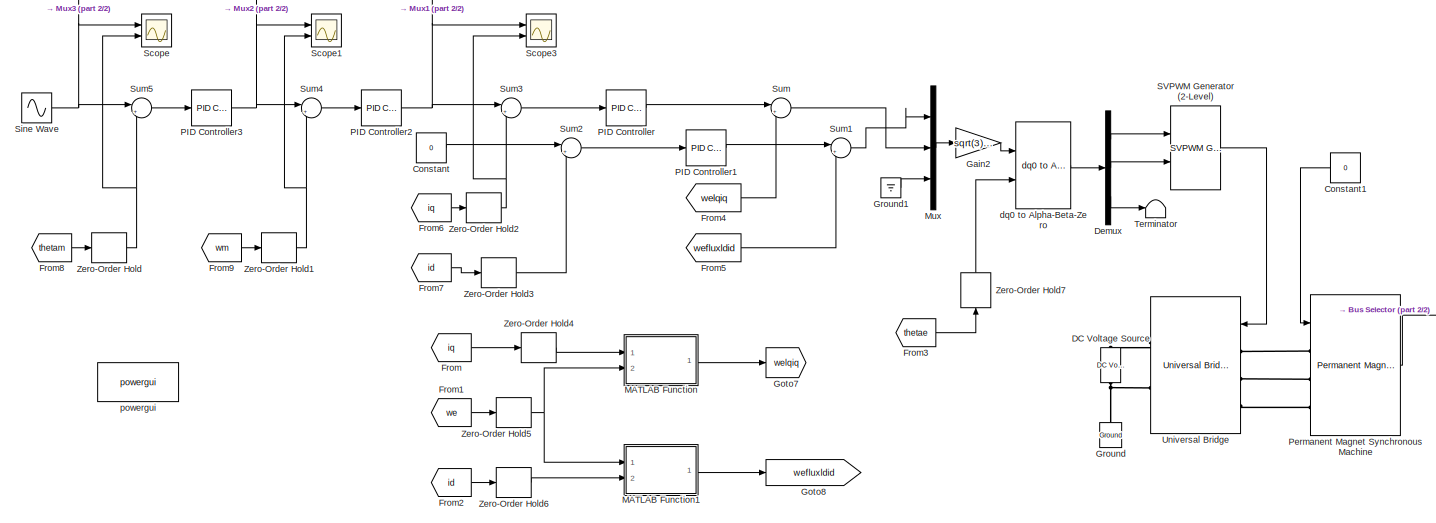
[diagram: root canvas - part 1/2, center side, full height]
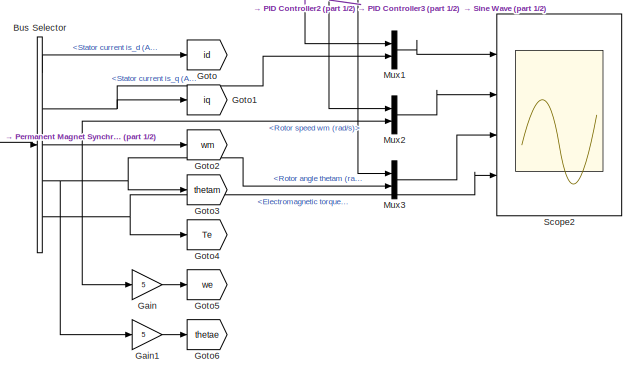
[diagram: root canvas - part 2/2, bottom right region]
MODEL slx_c045261bbdf4
KIND model
CONFIG AbsTol = auto
CONFIG EnableMultiTasking = off
CONFIG FixedStep = Auto
CONFIG InitFcn = ld = 10.1e-3;\nlq = 10.1e-3;\nflux = 0.0707;\ntz = 1/2000;
CONFIG MaxStep = 1e-4
CONFIG MinStep = 1e-5
CONFIG RelTol = 1e-3
CONFIG SampleTimeConstraint = Unconstrained
CONFIG SolverName = VariableStepAuto
CONFIG StartTime = 0.0
CONFIG StopTime = 1
BLOCK [BusSelector] Bus Selector
  OutputSignals = Stator current is_d (A),Stator current is_q (A),Rotor speed wm (rad/s),Rotor angle thetam (rad),Electromagnetic torque Te (N*m)
  Ports = [1, 5]
BLOCK [Constant] Constant
  Value = 0
BLOCK [Constant] Constant1
  NameLocation = top
  Value = 0
BLOCK [Reference] DC Voltage Source  REF=spsDCVoltageSourceLib/DC Voltage Source
  Ports = [0, 0, 0, 0, 0, 1, 1]
  SourceBlock = spsDCVoltageSourceLib/DC Voltage Source
  SourceProductBaseCode = PS
  SourceType = DC Voltage Source
BLOCK [Demux] Demux
  Outputs = 3
  Ports = [1, 3]
BLOCK [From] From
  GotoTag = iq
BLOCK [From] From1
  GotoTag = we
BLOCK [From] From2
  GotoTag = id
BLOCK [From] From3
  GotoTag = thetae
BLOCK [From] From4
  GotoTag = welqiq
BLOCK [From] From5
  GotoTag = wefluxldid
BLOCK [From] From6
  GotoTag = iq
BLOCK [From] From7
  GotoTag = id
BLOCK [From] From8
  GotoTag = thetam
BLOCK [From] From9
  GotoTag = wm
BLOCK [Gain] Gain
  Gain = 5
BLOCK [Gain] Gain1
  Gain = 5
BLOCK [Gain] Gain2
  Gain = sqrt(3)/750
BLOCK [Goto] Goto
  GotoTag = id
BLOCK [Goto] Goto1
  GotoTag = iq
BLOCK [Goto] Goto2
  GotoTag = wm
BLOCK [Goto] Goto3
  GotoTag = thetam
BLOCK [Goto] Goto4
  GotoTag = Te
BLOCK [Goto] Goto5
  GotoTag = we
BLOCK [Goto] Goto6
  GotoTag = thetae
BLOCK [Goto] Goto7
  GotoTag = welqiq
BLOCK [Goto] Goto8
  GotoTag = wefluxldid
BLOCK [Reference] Ground  REF=spsGroundLib/Ground
  NameLocation = right
  Ports = [0, 0, 0, 0, 0, 1]
  SourceBlock = spsGroundLib/Ground
  SourceProductBaseCode = PS
  SourceType = Ground
BLOCK [Ground] Ground1
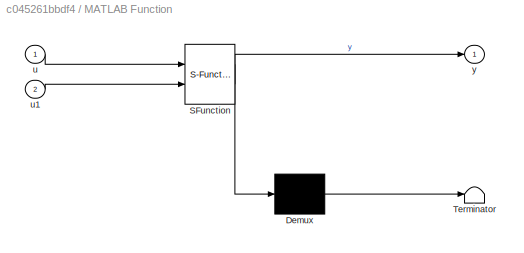
BLOCK [SubSystem] MATLAB Function
  ErrorFcn = Stateflow.Translate.translate
  PermitHierarchicalResolution = ExplicitOnly
  Ports = [2, 1]
  RequestExecContextInheritance = off
  SFBlockType = MATLAB Function
  TreatAsAtomicUnit = on
BLOCK [Demux] MATLAB Function/ Demux 
  Outputs = 1
  Ports = [1, 1]
BLOCK [S-Function] MATLAB Function/ SFunction 
  EnableBusSupport = on
  FunctionName = sf_sfun
  PortCounts = [2 2]
  Ports = [2, 2]
  SFcnIsStateOwnerBlock = off
  SFunctionDeploymentMode = off
  Tag = Stateflow S-Function 2
BLOCK [Terminator] MATLAB Function/ Terminator 
BLOCK [Inport] MATLAB Function/u
BLOCK [Inport] MATLAB Function/u1
  Port = 2
BLOCK [Outport] MATLAB Function/y
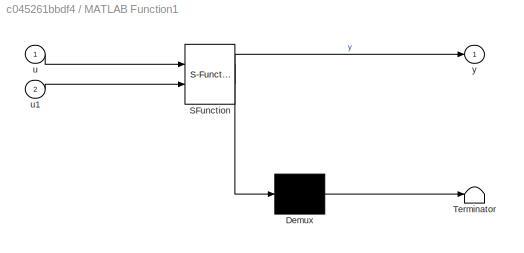
BLOCK [SubSystem] MATLAB Function1
  ErrorFcn = Stateflow.Translate.translate
  PermitHierarchicalResolution = ExplicitOnly
  Ports = [2, 1]
  RequestExecContextInheritance = off
  SFBlockType = MATLAB Function
  TreatAsAtomicUnit = on
BLOCK [Demux] MATLAB Function1/ Demux 
  Outputs = 1
  Ports = [1, 1]
BLOCK [S-Function] MATLAB Function1/ SFunction 
  EnableBusSupport = on
  FunctionName = sf_sfun
  PortCounts = [2 2]
  Ports = [2, 2]
  SFcnIsStateOwnerBlock = off
  SFunctionDeploymentMode = off
  Tag = Stateflow S-Function 1
BLOCK [Terminator] MATLAB Function1/ Terminator 
BLOCK [Inport] MATLAB Function1/u
BLOCK [Inport] MATLAB Function1/u1
  Port = 2
BLOCK [Outport] MATLAB Function1/y
BLOCK [Mux] Mux
  DisplayOption = bar
  Inputs = 3
  Ports = [3, 1]
BLOCK [Mux] Mux1
  DisplayOption = bar
  Inputs = 2
  Ports = [2, 1]
BLOCK [Mux] Mux2
  DisplayOption = bar
  Inputs = 2
  Ports = [2, 1]
BLOCK [Mux] Mux3
  DisplayOption = bar
  Inputs = 2
  Ports = [2, 1]
BLOCK [Reference] PID Controller  REF=slpidlib/PID Controller
  Ports = [1, 1]
  SourceBlock = slpidlib/PID Controller
  SourceProductBaseCode = SL
  SourceType = PID 1dof
BLOCK [Reference] PID Controller1  REF=slpidlib/PID Controller
  Ports = [1, 1]
  SourceBlock = slpidlib/PID Controller
  SourceProductBaseCode = SL
  SourceType = PID 1dof
BLOCK [Reference] PID Controller2  REF=slpidlib/PID Controller
  Ports = [1, 1]
  SourceBlock = slpidlib/PID Controller
  SourceProductBaseCode = SL
  SourceType = PID 1dof
BLOCK [Reference] PID Controller3  REF=slpidlib/PID Controller
  Ports = [1, 1]
  SourceBlock = slpidlib/PID Controller
  SourceProductBaseCode = SL
  SourceType = PID 1dof
BLOCK [Reference] Permanent Magnet Synchronous Machine  REF=spsPermanentMagnetSynchronousMachineLib/Permanent Magnet
Synchronous Machine
  Ports = [1, 1, 0, 0, 0, 3]
  SourceBlock = spsPermanentMagnetSynchronousMachineLib/Permanent Magnet\nSynchronous Machine
  SourceProductBaseCode = PS
  SourceType = Permanent Magnet Synchronous Machine
BLOCK [Reference] SVPWM Generator (2-Level)  REF=spsSVPWMGenerator2LevelLib/SVPWM Generator
(2-Level)
  Ports = [2, 1]
  SourceBlock = spsSVPWMGenerator2LevelLib/SVPWM Generator\n(2-Level)
  SourceProductBaseCode = PS
  SourceType = SVPWM Generator (2-Level)
BLOCK [Scope] Scope
  Floating = off
  NumInputPorts = 2
  Ports = [2]
  ScopeSpecificationString = Simulink.scopes.TimeScopeBlockCfg('CurrentConfiguration', extmgr.ConfigurationSet(extmgr.Configuration('Core','General UI',true,'FigureColor',[0 0 0]),extmgr.Configuration('Core','Source UI',true),extmgr.Configuration('Sources','WiredSimulink',true,'DataLogging',true,'DataLoggingVariableName','ScopeData2','DataLoggingSaveFormat','StructureWithTime'),extmgr.Configuration('Visuals','Time Domain',tru...<+1863ch>
BLOCK [Scope] Scope1
  Floating = off
  NumInputPorts = 2
  Ports = [2]
  ScopeSpecificationString = Simulink.scopes.TimeScopeBlockCfg('CurrentConfiguration', extmgr.ConfigurationSet(extmgr.Configuration('Core','General UI',true),extmgr.Configuration('Core','Source UI',true),extmgr.Configuration('Sources','WiredSimulink',true,'DataLoggingVariableName','ScopeData1'),extmgr.Configuration('Visuals','Time Domain',true,'SerializedDisplays',{struct('MinYLimReal','-82.35225','MaxYLimReal','557.00828','Y...<+1690ch>
BLOCK [Scope] Scope2
  Floating = off
  NumInputPorts = 4
  Ports = [4]
  ScopeSpecificationString = Simulink.scopes.TimeScopeBlockCfg('CurrentConfiguration', extmgr.ConfigurationSet(extmgr.Configuration('Core','General UI',true,'FigureColor',[1 1 1]),extmgr.Configuration('Core','Source UI',true),extmgr.Configuration('Sources','WiredSimulink',true,'DataLoggingVariableName','ScopeData2'),extmgr.Configuration('Visuals','Time Domain',true,'SerializedDisplays',{struct('MinYLimReal','-0.46242','MaxYLi...<+4714ch>
BLOCK [Scope] Scope3
  Floating = off
  NumInputPorts = 2
  Ports = [2]
  ScopeSpecificationString = Simulink.scopes.TimeScopeBlockCfg('CurrentConfiguration', extmgr.ConfigurationSet(extmgr.Configuration('Core','General UI',true),extmgr.Configuration('Core','Source UI',true),extmgr.Configuration('Sources','WiredSimulink',true,'DataLoggingVariableName','ScopeData1','DataLogging',true,'DataLoggingLimitDataPoints',true,'DataLoggingDecimateData',true,'DataLoggingSaveFormat','StructureWithTime'),extmg...<+1664ch>
BLOCK [Sin] Sine Wave
  Amplitude = 10
  Frequency = 3
  Ports = [0, 1]
  SampleTime = 0
BLOCK [Sum] Sum
  Inputs = |++
  Ports = [2, 1]
BLOCK [Sum] Sum1
  Inputs = |++
  Ports = [2, 1]
BLOCK [Sum] Sum2
  Inputs = |+-
  Ports = [2, 1]
BLOCK [Sum] Sum3
  Inputs = |+-
  Ports = [2, 1]
BLOCK [Sum] Sum4
  Inputs = |+-
  Ports = [2, 1]
BLOCK [Sum] Sum5
  Inputs = |+-
  Ports = [2, 1]
BLOCK [Terminator] Terminator
BLOCK [Reference] Universal Bridge  REF=spsUniversalBridgeLib/Universal Bridge
  Ports = [1, 0, 0, 0, 0, 3, 2]
  SourceBlock = spsUniversalBridgeLib/Universal Bridge
  SourceProductBaseCode = PS
  SourceType = Universal Bridge
BLOCK [ZeroOrderHold] Zero-Order Hold
  SampleTime = 1/2000
BLOCK [ZeroOrderHold] Zero-Order Hold1
  SampleTime = 1/4000
BLOCK [ZeroOrderHold] Zero-Order Hold2
  SampleTime = -1
BLOCK [ZeroOrderHold] Zero-Order Hold3
  SampleTime = -1
BLOCK [ZeroOrderHold] Zero-Order Hold4
  SampleTime = -1
BLOCK [ZeroOrderHold] Zero-Order Hold5
  SampleTime = -1
BLOCK [ZeroOrderHold] Zero-Order Hold6
  SampleTime = -1
BLOCK [ZeroOrderHold] Zero-Order Hold7
  NameLocation = right
  SampleTime = -1
BLOCK [Reference] dq0 to Alpha-Beta-Zero  REF=spsdq0toAlphaBetaZeroLib/dq0 to
Alpha-Beta-Zero
  Ports = [2, 1]
  SourceBlock = spsdq0toAlphaBetaZeroLib/dq0 to\nAlpha-Beta-Zero
  SourceProductBaseCode = PS
  SourceType = dq0 to Alpha-Beta-Zero Transformation
BLOCK [Reference] powergui  REF=spspowerguiLib/powergui
  Ports = []
  Priority = 1
  SourceBlock = spspowerguiLib/powergui
  SourceProductBaseCode = PS
  SourceType = PSB option menu block
LINE Bus Selector:1 -> Goto:1
NET Bus Selector:2 -> Goto1:1, Mux1:2
NET Bus Selector:3 -> Gain:1, Goto2:1, Mux2:2
NET Bus Selector:4 -> Gain1:1, Goto3:1, Mux3:2
NET Bus Selector:5 -> Goto4:1, Scope2:4
LINE Constant1:1 -> Permanent Magnet Synchronous Machine:1
LINE Constant:1 -> Sum2:1
LINE Demux:1 -> SVPWM Generator (2-Level):1
LINE Demux:2 -> SVPWM Generator (2-Level):2
LINE Demux:3 -> Terminator:1
LINE From1:1 -> Zero-Order Hold5:1
LINE From2:1 -> Zero-Order Hold6:1
LINE From3:1 -> Zero-Order Hold7:1
LINE From4:1 -> Sum:2
LINE From5:1 -> Sum1:2
LINE From6:1 -> Zero-Order Hold2:1
LINE From7:1 -> Zero-Order Hold3:1
LINE From8:1 -> Zero-Order Hold:1
LINE From9:1 -> Zero-Order Hold1:1
LINE From:1 -> Zero-Order Hold4:1
LINE Gain1:1 -> Goto6:1
LINE Gain2:1 -> dq0 to Alpha-Beta-Zero:1
LINE Gain:1 -> Goto5:1
LINE Ground1:1 -> Mux:3
LINE MATLAB Function1:1 -> Goto8:1
LINE MATLAB Function:1 -> Goto7:1
LINE Mux1:1 -> Scope2:1
LINE Mux2:1 -> Scope2:2
LINE Mux3:1 -> Scope2:3
LINE Mux:1 -> Gain2:1
LINE PID Controller1:1 -> Sum1:1
NET PID Controller2:1 -> Mux1:1, Scope3:1, Sum3:1
NET PID Controller3:1 -> Mux2:1, Scope1:1, Sum4:1
LINE PID Controller:1 -> Sum:1
LINE Permanent Magnet Synchronous Machine:1 -> Bus Selector:1
LINE SVPWM Generator (2-Level):1 -> Universal Bridge:1
NET Sine Wave:1 -> Mux3:1, Scope:1, Sum5:1
LINE Sum1:1 -> Mux:1
LINE Sum2:1 -> PID Controller1:1
LINE Sum3:1 -> PID Controller:1
LINE Sum4:1 -> PID Controller2:1
LINE Sum5:1 -> PID Controller3:1
LINE Sum:1 -> Mux:2
NET Zero-Order Hold1:1 -> Scope1:2, Sum4:2
NET Zero-Order Hold2:1 -> Scope3:2, Sum3:2
LINE Zero-Order Hold3:1 -> Sum2:2
LINE Zero-Order Hold4:1 -> MATLAB Function:1
NET Zero-Order Hold5:1 -> MATLAB Function1:1, MATLAB Function:2
LINE Zero-Order Hold6:1 -> MATLAB Function1:2
LINE Zero-Order Hold7:1 -> dq0 to Alpha-Beta-Zero:2
NET Zero-Order Hold:1 -> Scope:2, Sum5:2
LINE dq0 to Alpha-Beta-Zero:1 -> Demux:1
PNET net1: DC Voltage Source:LConn1 -- Ground:LConn1 -- Universal Bridge:RConn2
PLINE DC Voltage Source:RConn1 -- Universal Bridge:RConn1
PLINE Permanent Magnet Synchronous Machine:LConn1 -- Universal Bridge:LConn1
PLINE Permanent Magnet Synchronous Machine:LConn2 -- Universal Bridge:LConn2
PLINE Permanent Magnet Synchronous Machine:LConn3 -- Universal Bridge:LConn3
note: NET lines group one-source signal fan-out (src -> all destinations, sorted); 1:1 wires keep LINE; PNET lines group multi-terminal physical nets as a canonical sorted terminal list (undirected conserving connections); 2-terminal nets keep the pairwise PLINE form
CHART MATLAB Function states=1 transitions=1
  STATE_LABEL 'eML_blk_kernel()'
  STATE_LABEL 'SCRIPT:\nfunction y =  iq_ouhe(u,   u1)\n\ny = -u*(10.1e-3)*u1;\n\n'
CHART MATLAB Function1 states=1 transitions=1
  STATE_LABEL 'eML_blk_kernel()'
  STATE_LABEL 'SCRIPT:\nfunction y = id_ouhe(u , u1)\n\ny = u1*((10.1e-3)*u + 0.0707);\n'
CHART  states=0 transitions=0
CHART  states=0 transitions=0
